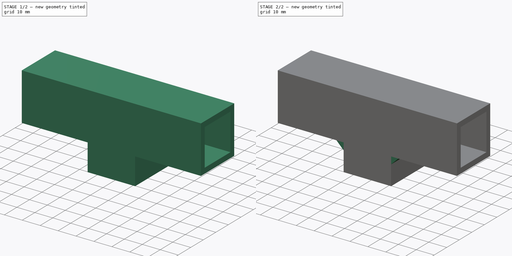
[diagram: build sequence overview — one tinted view per stage of 2, left to right]
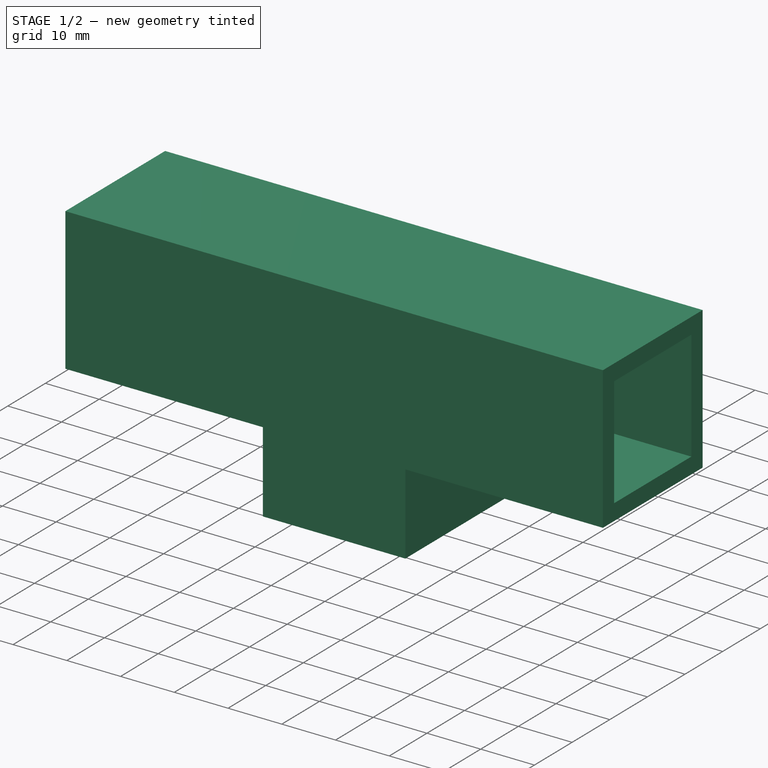
[diagram: stage 1 of 2 — iso view after this stage's code; geometry added in this stage tinted green]
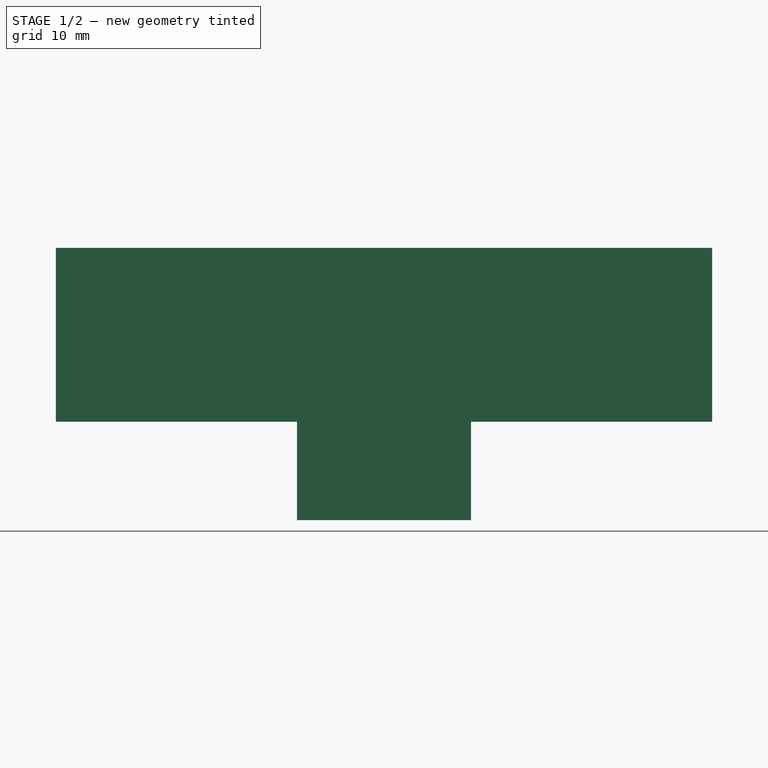
[diagram: stage 1 of 2 — front view after this stage's code; geometry added in this stage tinted green]
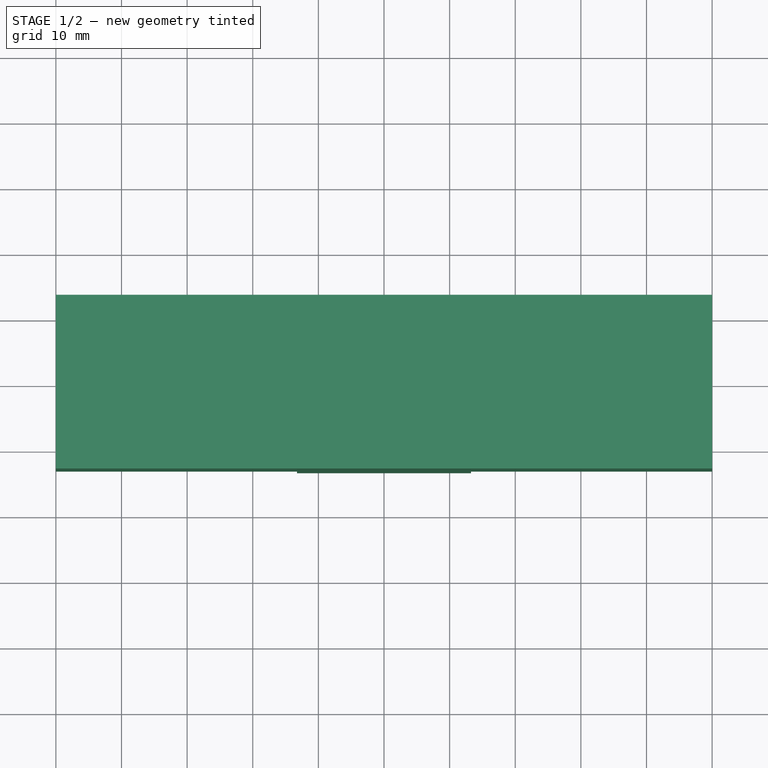
[diagram: stage 1 of 2 — top view after this stage's code; geometry added in this stage tinted green]
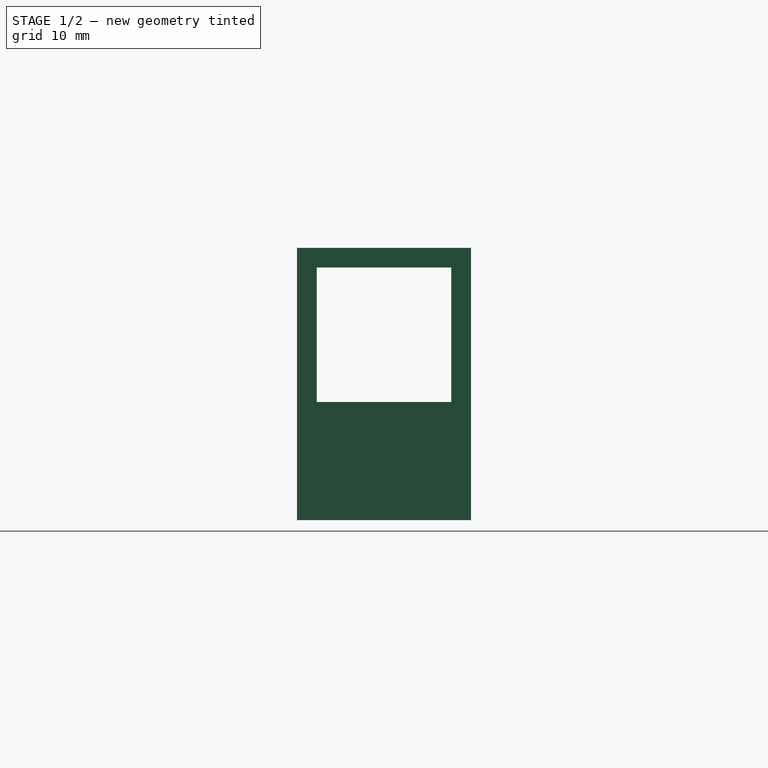
[diagram: stage 1 of 2 — right view after this stage's code; geometry added in this stage tinted green]
FCSTD DOCUMENT  (FreeCAD 0.21R33771 (Git))
Label: Dachreling_KlemmeV2
License: All rights reserved
LicenseURL: http://en.wikipedia.org/wiki/All_rights_reserved
objects: Sketcher::SketchObject×3, PartDesign::Body×2, PartDesign::Pad×2, PartDesign::Chamfer×1
note: 11 computed .brp shape members not serialized (recipe doc carries the construction recipe); baked Part::Feature solids carry a one-line shape summary decoded from their .brp

FEATURE [PartDesign::Body] Body  label="Körper"
  Origin = -> Origin
FEATURE [Sketcher::SketchObject] Sketch
  FullyConstrained = true
  MapMode = 5
  Support = -> [XY_Plane001]
  sketch-geometry (10):
    g0: LineSegment StartX=-10.25 StartY=10.25 StartZ=0 EndX=-10.25 EndY=-10.25 EndZ=0
    g1: LineSegment StartX=-10.25 StartY=-10.25 StartZ=0 EndX=10.25 EndY=-10.25 EndZ=0
    g2: LineSegment StartX=10.25 StartY=-10.25 StartZ=0 EndX=10.25 EndY=10.25 EndZ=0
    g3: LineSegment StartX=10.25 StartY=10.25 StartZ=0 EndX=-10.25 EndY=10.25 EndZ=0
    g4: GeomPoint X=0 Y=0 Z=0
    g5: LineSegment StartX=-13.25 StartY=13.25 StartZ=0 EndX=-13.25 EndY=-13.25 EndZ=0
    g6: LineSegment StartX=-13.25 StartY=-13.25 StartZ=0 EndX=13.25 EndY=-13.25 EndZ=0
    g7: LineSegment StartX=13.25 StartY=-13.25 StartZ=0 EndX=13.25 EndY=13.25 EndZ=0
    g8: LineSegment StartX=13.25 StartY=13.25 StartZ=0 EndX=-13.25 EndY=13.25 EndZ=0
    g9: GeomPoint X=0 Y=0 Z=0
  constraints (24):
    c: Coincident(g0,g1)
    c: Coincident(g1,g2)
    c: Coincident(g2,g3)
    c: Coincident(g3,g0)
    c: Horizontal(g1)
    c: Horizontal(g3)
    c: Vertical(g0)
    c: Vertical(g2)
    c: Symmetric(g1,g0,g4)
    c: Coincident(g4,g-1)
    c: Distance(g3) = 20.5
    c: Distance(g2) = 20.5
    c: Coincident(g5,g6)
    c: Coincident(g6,g7)
    c: Coincident(g7,g8)
    c: Coincident(g8,g5)
    c: Horizontal(g6)
    c: Horizontal(g8)
    c: Vertical(g5)
    c: Vertical(g7)
    c: Symmetric(g6,g5,g9)
    c: Coincident(g9,g4)
    c: Distance(g1,g7) = 3
    c: Distance(g2,g8) = 3
FEATURE [PartDesign::Pad] Pad
  Direction = (0,0,1)
  Length = 15
  Length2 = 10
  Profile = -> Sketch
  ReferenceAxis = -> Sketch [N_Axis]
  Type = 0
FEATURE [Sketcher::SketchObject] Sketch001
  ExternalGeometry = -> [Pad]
  FullyConstrained = true
  MapMode = 5
  Placement = pos=(0,0,0) rot=(0.57735,0.57735,0.57735;2.0944rad)
  Support = -> [YZ_Plane001]
  sketch-geometry (9):
    g0: LineSegment StartX=-13.25 StartY=15 StartZ=0 EndX=13.25 EndY=15 EndZ=0
    g1: LineSegment StartX=13.25 StartY=15 StartZ=0 EndX=13.25 EndY=41.5 EndZ=0
    g2: LineSegment StartX=13.25 StartY=41.5 StartZ=0 EndX=-13.25 EndY=41.5 EndZ=0
    g3: LineSegment StartX=-13.25 StartY=41.5 StartZ=0 EndX=-13.25 EndY=15 EndZ=0
    g4: LineSegment StartX=-10.25 StartY=38.5 StartZ=0 EndX=-10.25 EndY=18 EndZ=0
    g5: LineSegment StartX=-10.25 StartY=18 StartZ=0 EndX=10.25 EndY=18 EndZ=0
    g6: LineSegment StartX=10.25 StartY=18 StartZ=0 EndX=10.25 EndY=38.5 EndZ=0
    g7: LineSegment StartX=10.25 StartY=38.5 StartZ=0 EndX=-10.25 EndY=38.5 EndZ=0
    g8: GeomPoint X=0 Y=28.25 Z=0
  constraints (23):
    c: Coincident(g0,g1)
    c: Coincident(g1,g2)
    c: Coincident(g2,g3)
    c: Coincident(g3,g0)
    c: Horizontal(g2)
    c: Vertical(g1)
    c: Vertical(g3)
    c: Coincident(g0,g-3)
    c: Coincident(g0,g-5)
    c: Coincident(g4,g5)
    c: Coincident(g5,g6)
    c: Coincident(g6,g7)
    c: Coincident(g7,g4)
    c: Horizontal(g5)
    c: Horizontal(g7)
    c: Vertical(g4)
    c: Vertical(g6)
    c: Symmetric(g5,g4,g8)
    c: PointOnObject(g8,g-2)
    c: Distance(g5,g0) = 3
    c: Distance(g6,g2) = 3
    c: Distance(g5,g1) = 3
    c: Distance(g6) = 20.5
FEATURE [PartDesign::Pad] Pad001
  BaseFeature = -> Pad
  Direction = (1,-2e-16,3e-16)
  Length = 100
  Length2 = 10
  Midplane = true
  Profile = -> Sketch001
  ReferenceAxis = -> Sketch001 [N_Axis]
  Type = 0
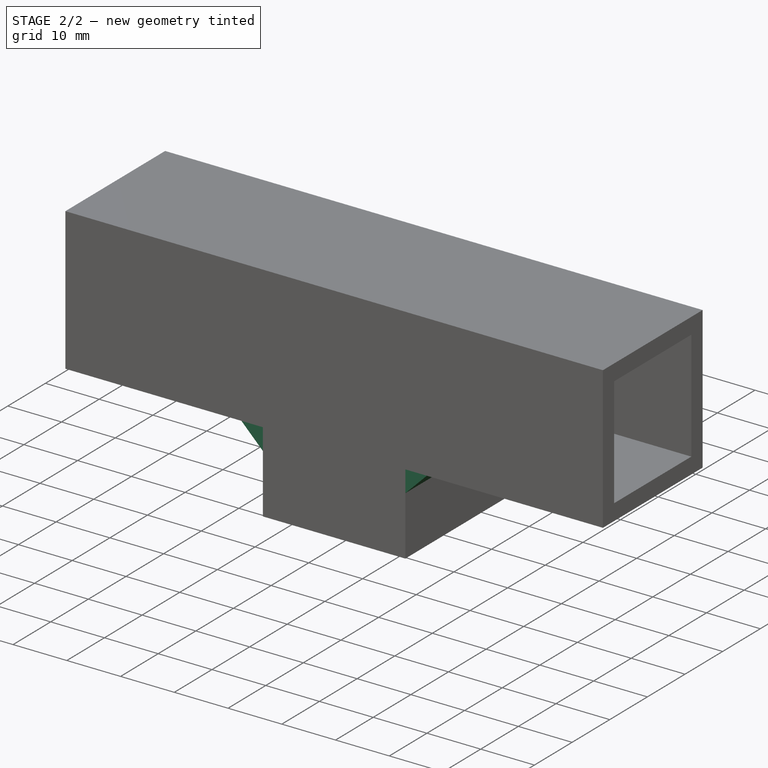
[diagram: stage 2 of 2 — iso view after this stage's code; geometry added in this stage tinted green]
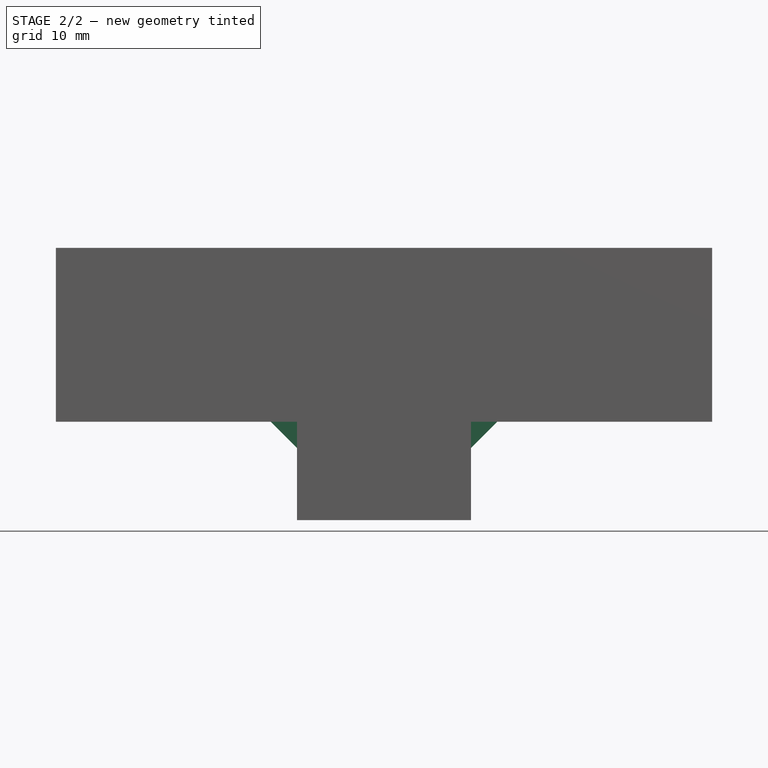
[diagram: stage 2 of 2 — front view after this stage's code; geometry added in this stage tinted green]
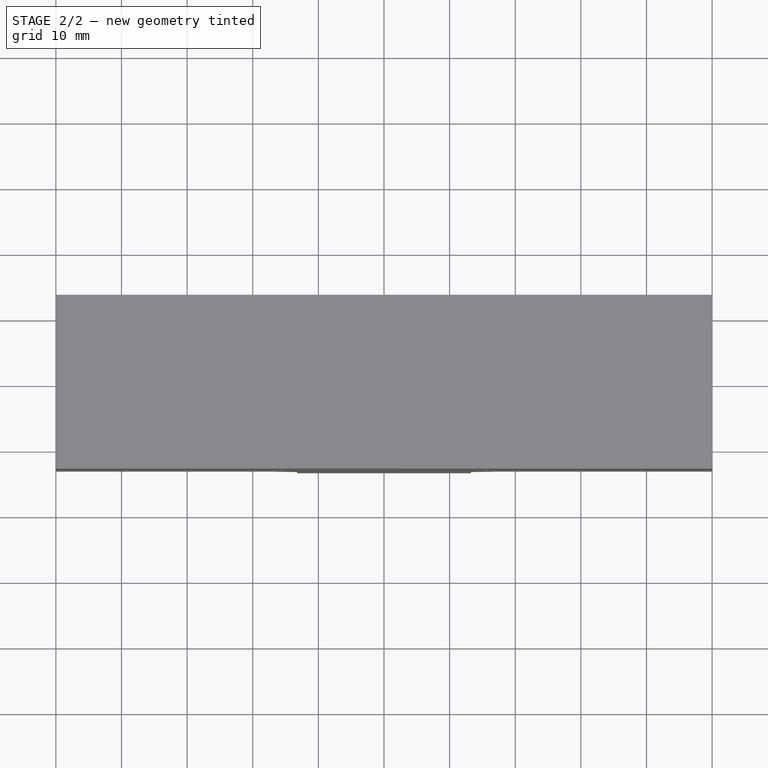
[diagram: stage 2 of 2 — top view after this stage's code; geometry added in this stage tinted green]
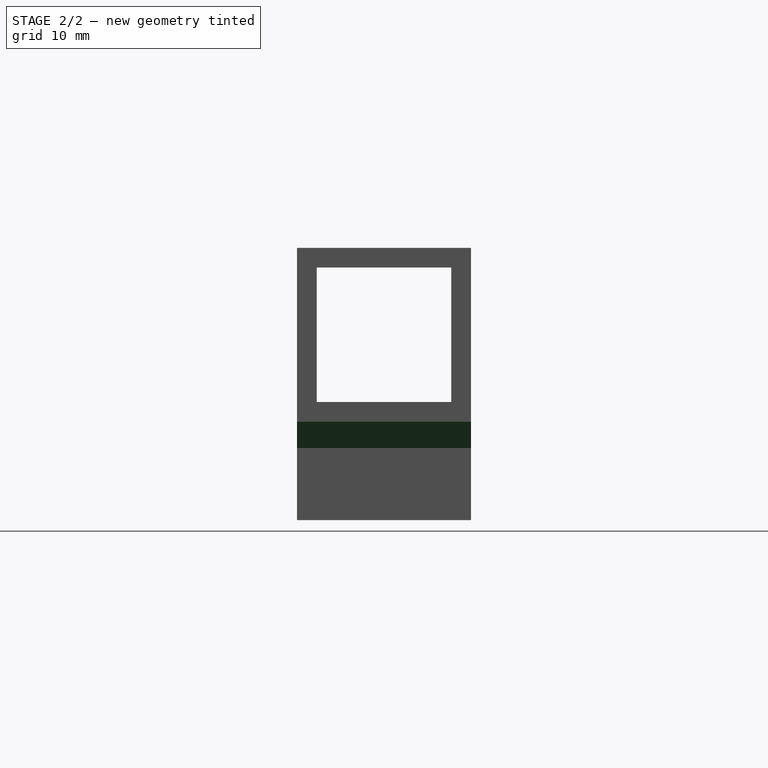
[diagram: stage 2 of 2 — right view after this stage's code; geometry added in this stage tinted green]
FEATURE [PartDesign::Chamfer] Chamfer
  Angle = 45
  Base = -> Pad001 [Edge34,Edge3]
  BaseFeature = -> Pad001
  ChamferType = 0
  FlipDirection = false
  Size = 4
  Size2 = 1
  SupportTransform = false
  UseAllEdges = false
FEATURE [Sketcher::SketchObject] Sketch002
  FullyConstrained = true
  MapMode = 5
  Placement = pos=(13.25,0,0) rot=(0.57735,0.57735,0.57735;2.0944rad)
  Support = -> [Chamfer]
  sketch-geometry (1):
    g0: Circle CenterX=0 CenterY=8 CenterZ=0 NormalX=0 NormalY=0 NormalZ=1 AngleXU=0 Radius=4.5
  constraints (3):
    c: PointOnObject(g0,g-2)
    c: Diameter(g0) = 9
    c: Distance(g0,g-1) = 8
FEATURE [PartDesign::Body] Body001  label="Körper001"
  Group = -> [Sketch,Pad,Sketch001,Pad001,Chamfer,Sketch002]
  Origin = -> Origin001
  Tip = -> Chamfer
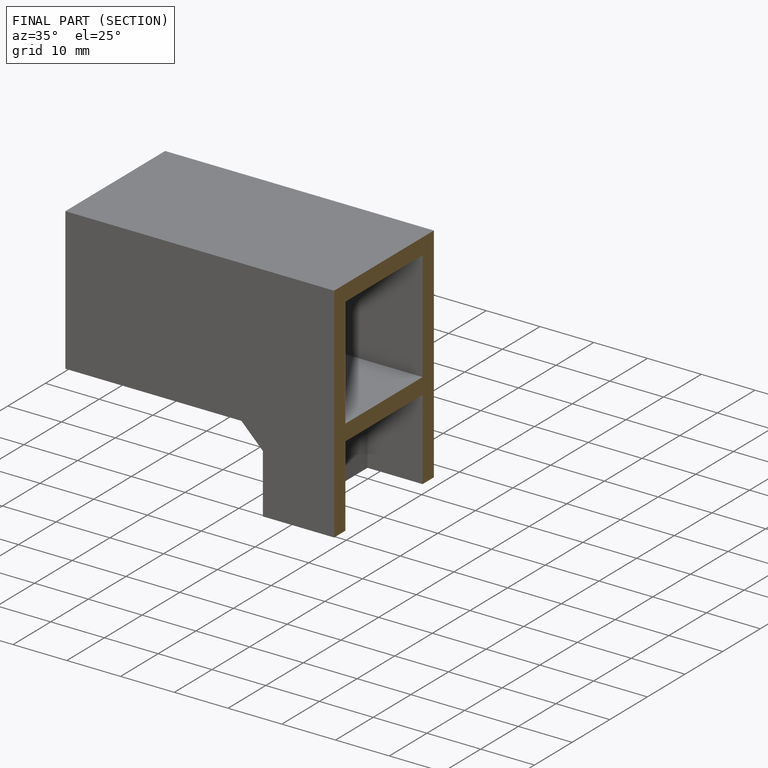
[diagram: finished part — half-section view (interior)]
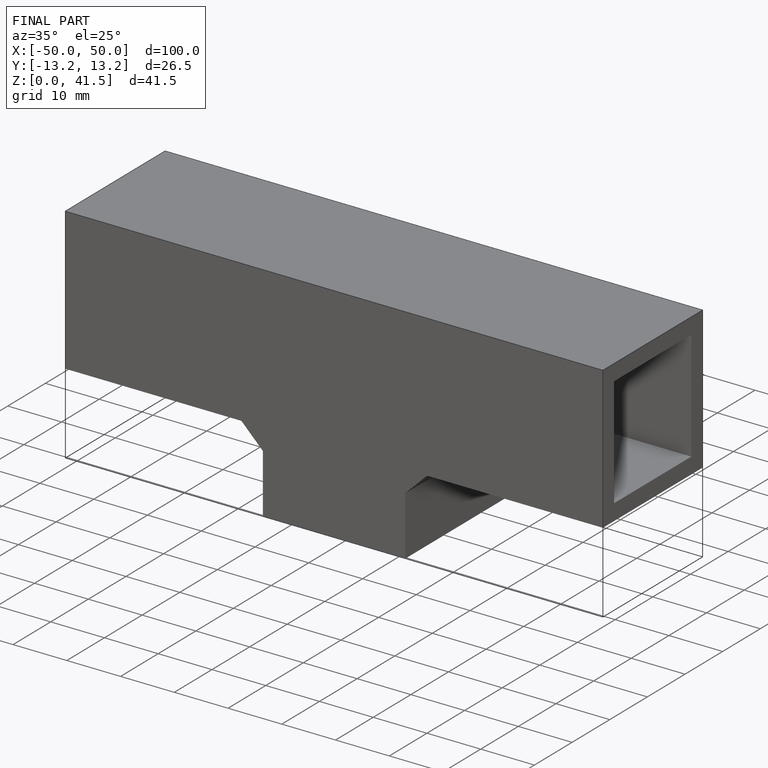
[diagram: finished part — iso view with bounding-box wireframe]
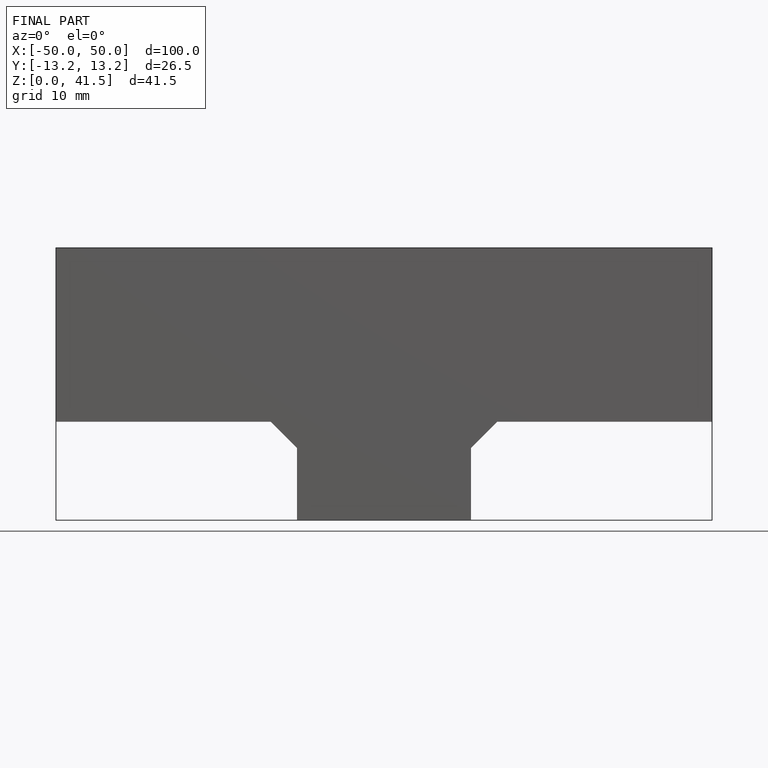
[diagram: finished part — front view with bounding-box wireframe]
